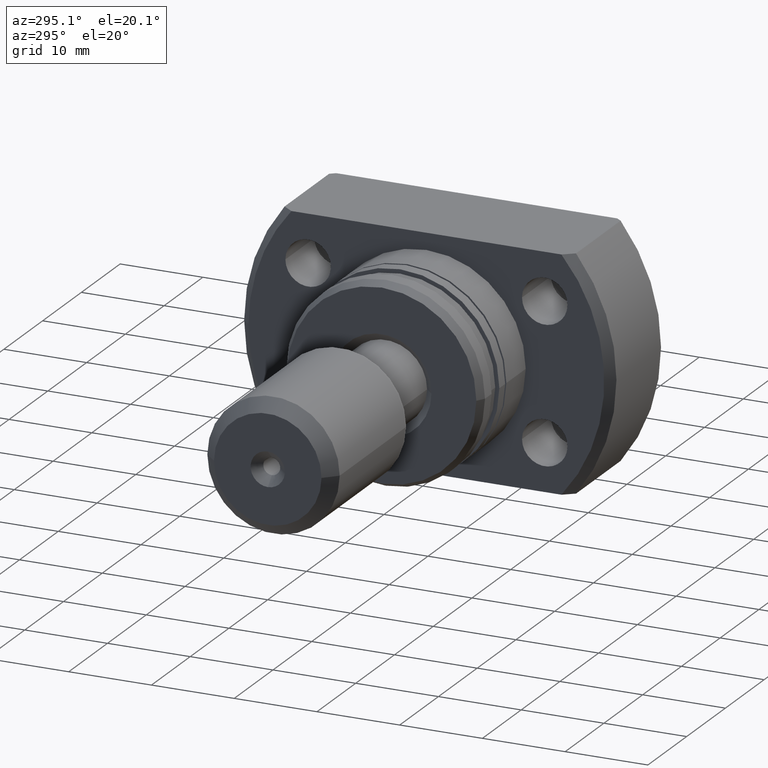
[diagram: clean part render]
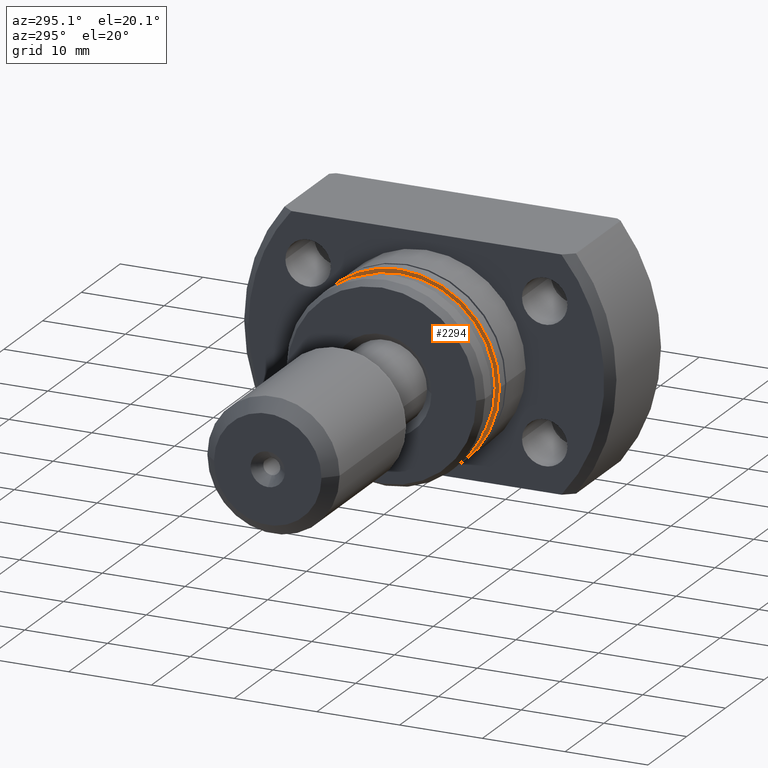
[diagram: same view with one face highlighted and labeled with its STEP entity id]
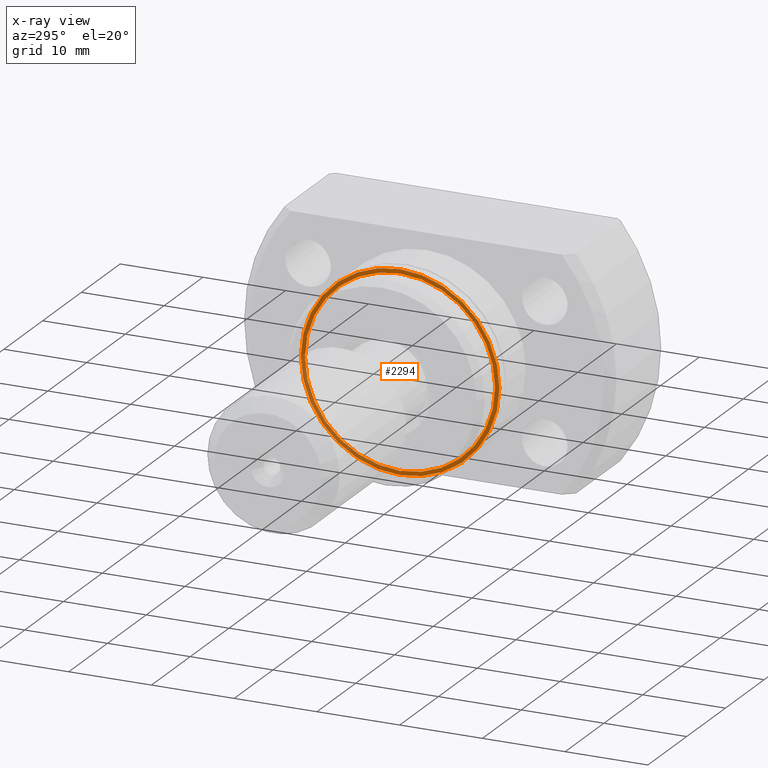
[diagram: x-ray of the same camera — body ghosted, the highlighted face saturated]
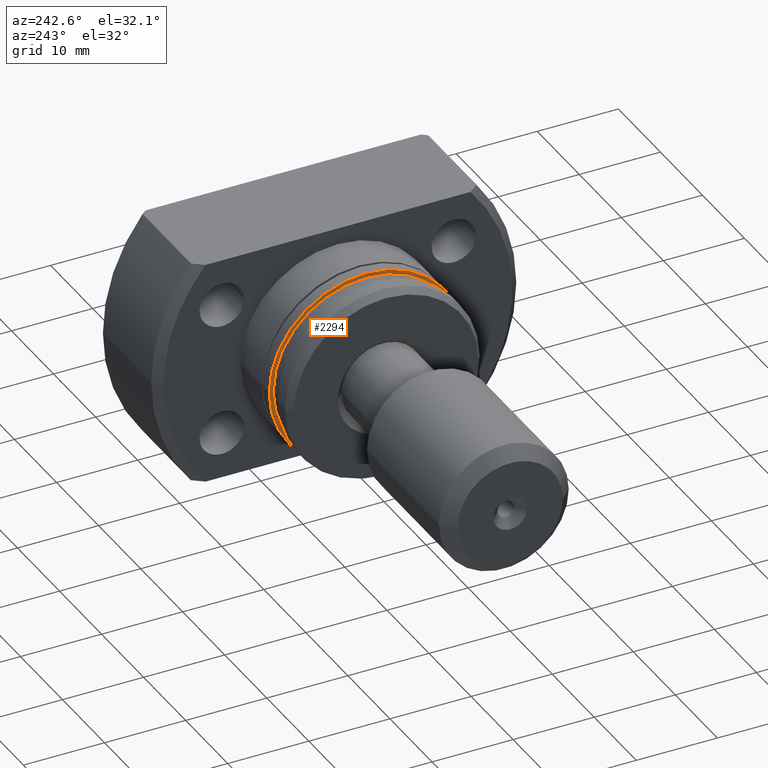
[diagram: same view with one face highlighted and labeled with its STEP entity id]
A machine part, auxiliary view. The second image highlights one B-rep face of the part: STEP entity #2294.
The next image is the same camera in x-ray: the body ghosted, the highlighted face saturated — about 24% of this face is hidden behind the body in this view.
A second angle (auxiliary view) of the same face is appended — the face is thin or edge-on in the first view.
In plain terms, the highlighted planar face has unit normal (1, 0, 0).
Its self-contained STEP definition (entity closure, byte-faithful):
#23 = CARTESIAN_POINT ( 'NONE',  ( 4.699999999998548894, 2.349322431021842676E-18, 0.000000000000000000 ) ) ;
#51 = CIRCLE ( 'NONE', #716, 11.99999999999999645 ) ;
#52 = CARTESIAN_POINT ( 'NONE',  ( 4.699999999998548894, 2.349322431021842676E-18, 0.000000000000000000 ) ) ;
#107 = VERTEX_POINT ( 'NONE', #2696 ) ;
#114 = CARTESIAN_POINT ( 'NONE',  ( 4.699999999998548894, 11.49999999999999112, 0.000000000000000000 ) ) ;
#217 = DIRECTION ( 'NONE',  ( 1.000000000000000000, 4.998558363877804092E-19, -0.000000000000000000 ) ) ;
#411 = CIRCLE ( 'NONE', #2083, 11.49999999999999112 ) ;
#424 = FACE_OUTER_BOUND ( 'NONE', #554, .T. ) ;
#554 = EDGE_LOOP ( 'NONE', ( #846, #1398 ) ) ;
#576 = AXIS2_PLACEMENT_3D ( 'NONE', #678, #961, #1176 ) ;
#678 = CARTESIAN_POINT ( 'NONE',  ( 4.699999999998547118, -11.49999999999999112, 0.000000000000000000 ) ) ;
#716 = AXIS2_PLACEMENT_3D ( 'NONE', #23, #2313, #819 ) ;
#760 = DIRECTION ( 'NONE',  ( 0.000000000000000000, 1.000000000000000000, 0.000000000000000000 ) ) ;
#806 = VERTEX_POINT ( 'NONE', #2216 ) ;
#819 = DIRECTION ( 'NONE',  ( 0.000000000000000000, 1.000000000000000000, 0.000000000000000000 ) ) ;
#846 = ORIENTED_EDGE ( 'NONE', *, *, #2404, .F. ) ;
#917 = ORIENTED_EDGE ( 'NONE', *, *, #3182, .T. ) ;
#961 = DIRECTION ( 'NONE',  ( 1.000000000000000000, 4.998558363877804092E-19, -0.000000000000000000 ) ) ;
#1072 = DIRECTION ( 'NONE',  ( 0.000000000000000000, 1.000000000000000000, 0.000000000000000000 ) ) ;
#1079 = ORIENTED_EDGE ( 'NONE', *, *, #2528, .T. ) ;
#1176 = DIRECTION ( 'NONE',  ( -4.998558363877804092E-19, 1.000000000000000000, 0.000000000000000000 ) ) ;
#1398 = ORIENTED_EDGE ( 'NONE', *, *, #2373, .F. ) ;
#1436 = DIRECTION ( 'NONE',  ( 0.000000000000000000, 1.000000000000000000, 0.000000000000000000 ) ) ;
#1549 = DIRECTION ( 'NONE',  ( 1.000000000000000000, 4.998558363877804092E-19, -0.000000000000000000 ) ) ;
#1696 = PLANE ( 'NONE',  #576 ) ;
#2075 = VERTEX_POINT ( 'NONE', #114 ) ;
#2083 = AXIS2_PLACEMENT_3D ( 'NONE', #2605, #2668, #1072 ) ;
#2205 = VERTEX_POINT ( 'NONE', #2462 ) ;
#2216 = CARTESIAN_POINT ( 'NONE',  ( 4.699999999998548894, -11.99999999999999645, 1.469576158976823553E-15 ) ) ;
#2294 = ADVANCED_FACE ( 'NONE', ( #424, #2916 ), #1696, .F. ) ;
#2313 = DIRECTION ( 'NONE',  ( 1.000000000000000000, 4.998558363877804092E-19, -0.000000000000000000 ) ) ;
#2373 = EDGE_CURVE ( 'NONE', #806, #2205, #51, .T. ) ;
#2404 = EDGE_CURVE ( 'NONE', #2205, #806, #3022, .T. ) ;
#2435 = EDGE_LOOP ( 'NONE', ( #917, #1079 ) ) ;
#2462 = CARTESIAN_POINT ( 'NONE',  ( 4.699999999998548894, 11.99999999999999645, 0.000000000000000000 ) ) ;
#2528 = EDGE_CURVE ( 'NONE', #107, #2075, #411, .T. ) ;
#2605 = CARTESIAN_POINT ( 'NONE',  ( 4.699999999998548894, 2.349322431021842676E-18, 0.000000000000000000 ) ) ;
#2668 = DIRECTION ( 'NONE',  ( 1.000000000000000000, 4.998558363877804092E-19, -0.000000000000000000 ) ) ;
#2696 = CARTESIAN_POINT ( 'NONE',  ( 4.699999999998548894, -11.49999999999999112, 1.408343819019455190E-15 ) ) ;
#2748 = CARTESIAN_POINT ( 'NONE',  ( 4.699999999998548894, 2.349322431021842676E-18, 0.000000000000000000 ) ) ;
#2907 = AXIS2_PLACEMENT_3D ( 'NONE', #52, #1549, #760 ) ;
#2916 = FACE_BOUND ( 'NONE', #2435, .T. ) ;
#3022 = CIRCLE ( 'NONE', #2907, 11.99999999999999645 ) ;
#3117 = CIRCLE ( 'NONE', #3175, 11.49999999999999112 ) ;
#3175 = AXIS2_PLACEMENT_3D ( 'NONE', #2748, #217, #1436 ) ;
#3182 = EDGE_CURVE ( 'NONE', #2075, #107, #3117, .T. ) ;